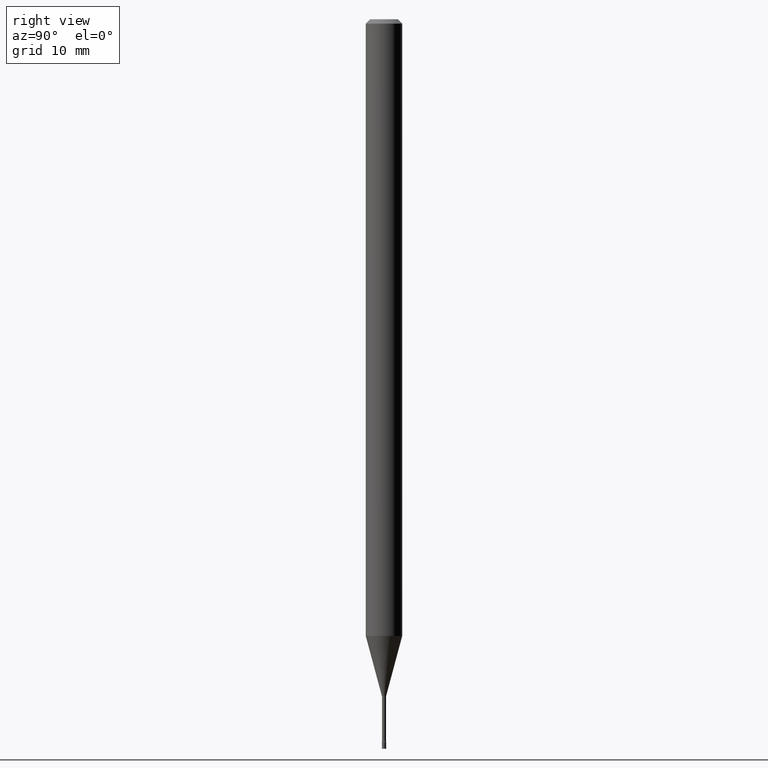
[diagram: clean part render]
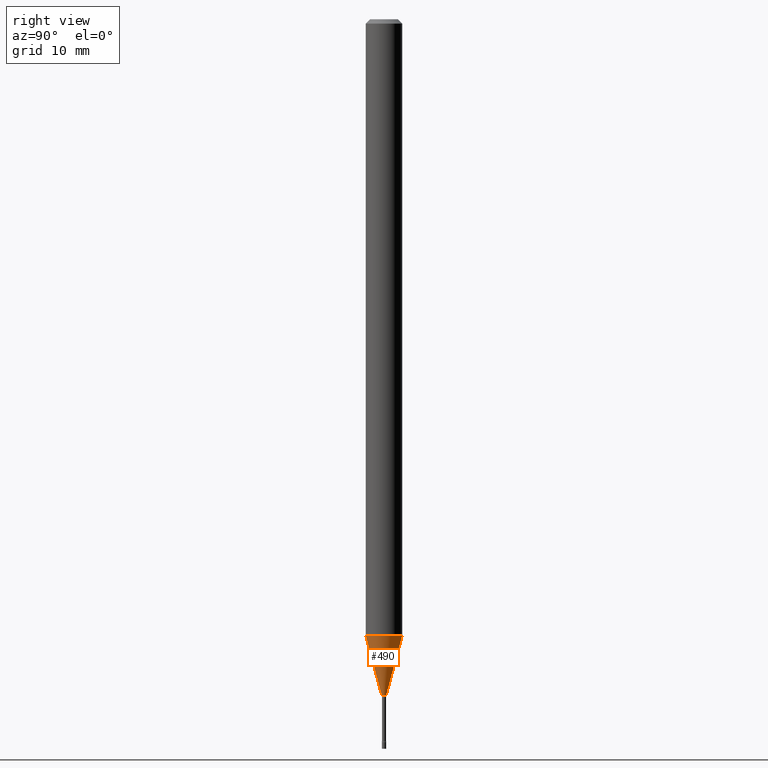
[diagram: same view with one face highlighted and labeled with its STEP entity id]
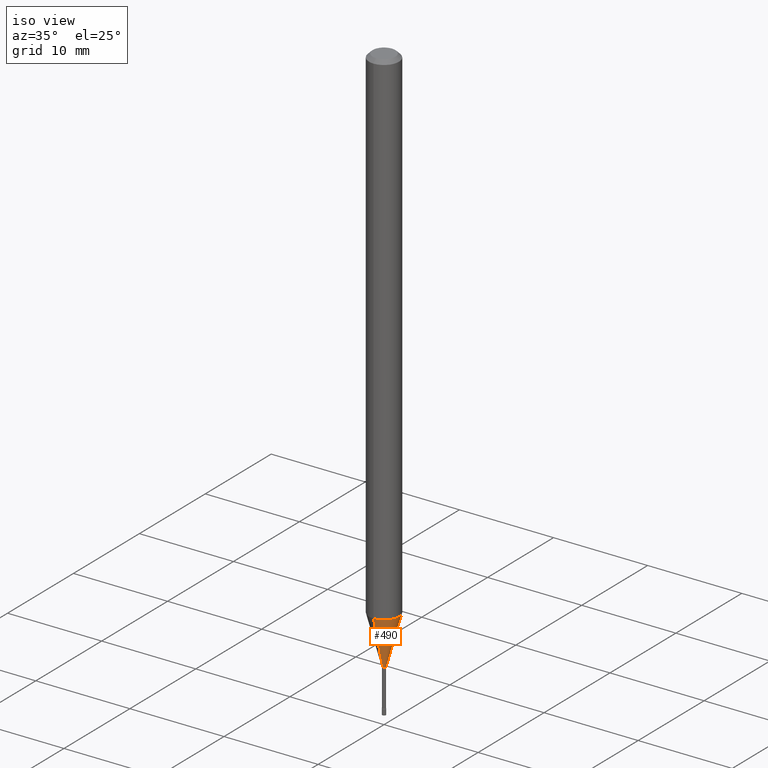
[diagram: same view with one face highlighted and labeled with its STEP entity id]
A machine part, right view. The second image highlights one B-rep face of the part: STEP entity #490.
A second angle (iso view) of the same face is appended — the face is thin or edge-on in the first view.
In plain terms, the highlighted conical surface has half-angle 15 deg.
Its self-contained STEP definition (entity closure, byte-faithful):
#6 = EDGE_CURVE ( 'NONE', #297, #343, #64, .T. ) ;
#14 = LINE ( 'NONE', #215, #48 ) ;
#17 = CARTESIAN_POINT ( 'NONE',  ( -5.279896712707803457E-17, -0.007561112605672072433, -2.318092501787273108 ) ) ;
#22 = EDGE_CURVE ( 'NONE', #474, #68, #14, .T. ) ;
#24 = VECTOR ( 'NONE', #174, 39.37007874015748854 ) ;
#28 = DIRECTION ( 'NONE',  ( -1.807323732225327378E-15, -0.2588190451025177974, 0.9659258262890690894 ) ) ;
#46 = DIRECTION ( 'NONE',  ( -2.445513339146382515E-29, 3.491417565107982719E-15, 1.000000000000000000 ) ) ;
#48 = VECTOR ( 'NONE', #28, 39.37007874015748143 ) ;
#54 = ORIENTED_EDGE ( 'NONE', *, *, #22, .F. ) ;
#60 = FACE_OUTER_BOUND ( 'NONE', #420, .T. ) ;
#64 = LINE ( 'NONE', #301, #24 ) ;
#68 = VERTEX_POINT ( 'NONE', #505 ) ;
#79 = DIRECTION ( 'NONE',  ( -6.982962677686265133E-15, -1.000000000000000000, 0.000000000000000000 ) ) ;
#89 = CARTESIAN_POINT ( 'NONE',  ( 2.489070731061789820E-16, 0.007561112605655887463, -2.318092501787273108 ) ) ;
#129 = EDGE_CURVE ( 'NONE', #474, #297, #216, .T. ) ;
#149 = AXIS2_PLACEMENT_3D ( 'NONE', #498, #227, #504 ) ;
#156 = DIRECTION ( 'NONE',  ( -2.445513339146382515E-29, 3.491417565107982719E-15, 1.000000000000000000 ) ) ;
#174 = DIRECTION ( 'NONE',  ( 1.839019923739597160E-15, 0.2588190451025245142, 0.9659258262890670910 ) ) ;
#210 = ORIENTED_EDGE ( 'NONE', *, *, #129, .T. ) ;
#215 = CARTESIAN_POINT ( 'NONE',  ( -5.279896712707803457E-17, -0.007561112605672072433, -2.318092501787273108 ) ) ;
#216 = CIRCLE ( 'NONE', #394, 0.007561112605663979948 ) ;
#227 = DIRECTION ( 'NONE',  ( -2.445513339146382515E-29, 3.491417565107982719E-15, 1.000000000000000000 ) ) ;
#287 = CARTESIAN_POINT ( 'NONE',  ( 5.167510994029587230E-29, -7.377567058677804661E-15, -2.113057782720306310 ) ) ;
#297 = VERTEX_POINT ( 'NONE', #89 ) ;
#300 = ORIENTED_EDGE ( 'NONE', *, *, #330, .F. ) ;
#301 = CARTESIAN_POINT ( 'NONE',  ( 5.372493636224331373E-17, 0.007561112605655886595, -2.318092501787273108 ) ) ;
#329 = CONICAL_SURFACE ( 'NONE', #149, 0.007561112605663979948, 0.2617993877991498519 ) ;
#330 = EDGE_CURVE ( 'NONE', #68, #343, #425, .T. ) ;
#343 = VERTEX_POINT ( 'NONE', #371 ) ;
#371 = CARTESIAN_POINT ( 'NONE',  ( 4.440892098501140893E-16, 0.06249999999999262396, -2.113057782720306310 ) ) ;
#394 = AXIS2_PLACEMENT_3D ( 'NONE', #471, #156, #79 ) ;
#411 = AXIS2_PLACEMENT_3D ( 'NONE', #287, #46, #440 ) ;
#420 = EDGE_LOOP ( 'NONE', ( #210, #438, #300, #54 ) ) ;
#425 = CIRCLE ( 'NONE', #411, 0.06250000000000000000 ) ;
#438 = ORIENTED_EDGE ( 'NONE', *, *, #6, .T. ) ;
#440 = DIRECTION ( 'NONE',  ( -6.982962677686265922E-15, -1.000000000000000000, 4.370956789862821150E-15 ) ) ;
#471 = CARTESIAN_POINT ( 'NONE',  ( 5.668926134495985985E-29, -8.093428878285194336E-15, -2.318092501787273108 ) ) ;
#474 = VERTEX_POINT ( 'NONE', #17 ) ;
#490 = ADVANCED_FACE ( 'NONE', ( #60 ), #329, .T. ) ;
#498 = CARTESIAN_POINT ( 'NONE',  ( 5.668926134495985985E-29, -8.093428878285194336E-15, -2.318092501787273108 ) ) ;
#504 = DIRECTION ( 'NONE',  ( -6.982962677686265133E-15, -1.000000000000000000, 0.000000000000000000 ) ) ;
#505 = CARTESIAN_POINT ( 'NONE',  ( -4.364351673553399990E-16, -0.06250000000000736911, -2.113057782720305866 ) ) ;